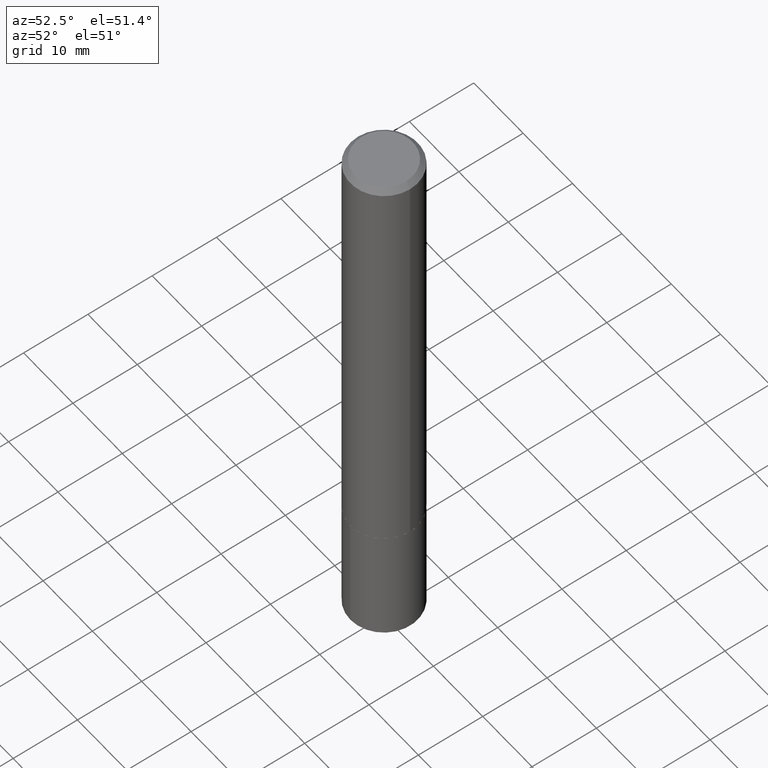
[diagram: clean part render]
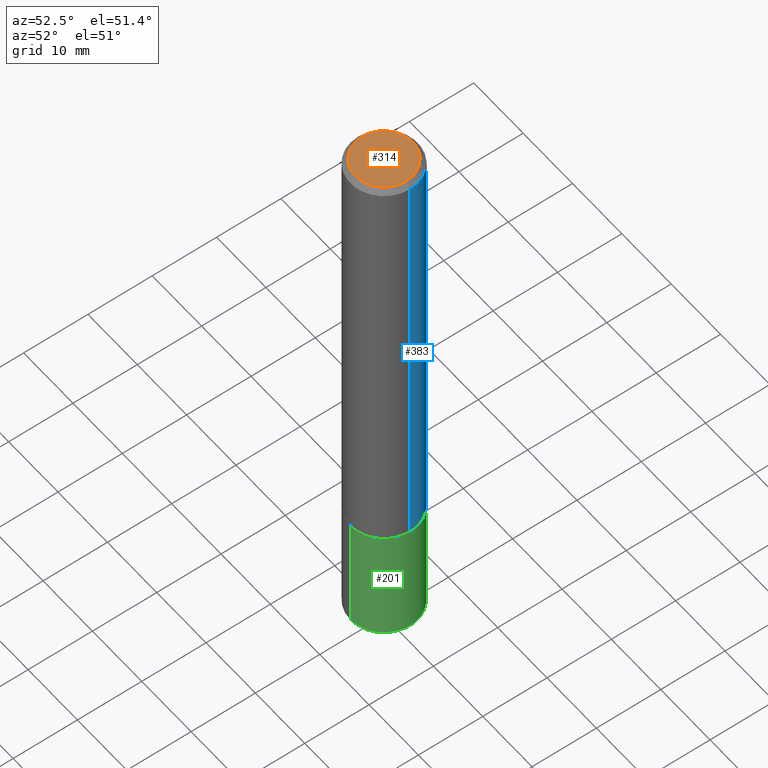
[diagram: same view with three faces highlighted in distinct colors, each labeled with its STEP entity id]
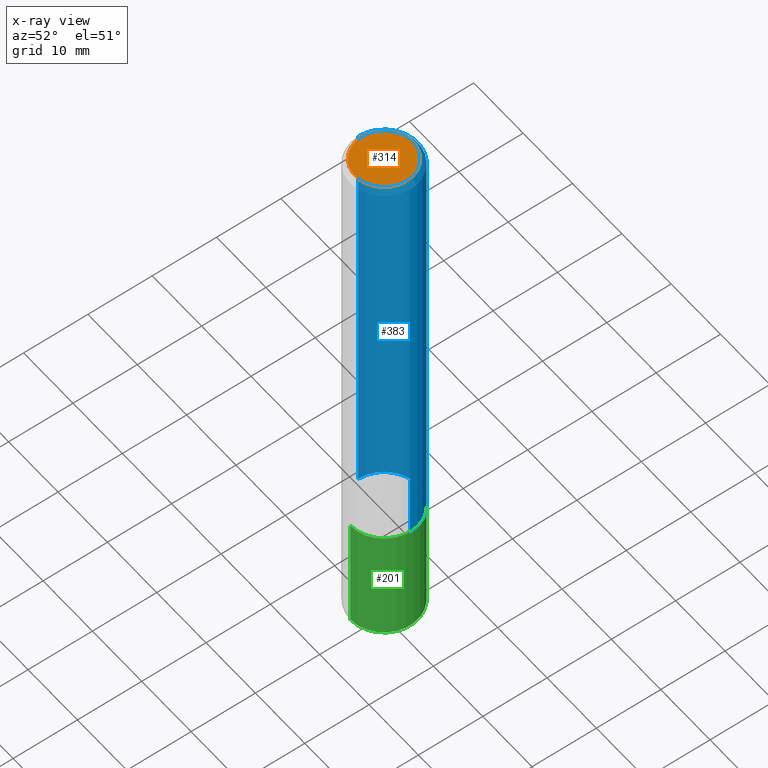
[diagram: x-ray of the same camera — body ghosted, the three highlighted faces saturated]
A machine part, auxiliary view with three faces highlighted in distinct colors.
The next image is the same camera in x-ray (body ghosted, the three faces saturated) — at least one of them is partly hidden behind the body in this view.
Their STEP definitions:

[orange] entity #314 — the highlighted planar face has unit normal (0, -0, -1).
#30 = ORIENTED_EDGE ( 'NONE', *, *, #256, .T. ) ;
#41 = VERTEX_POINT ( 'NONE', #73 ) ;
#73 = CARTESIAN_POINT ( 'NONE',  ( 0.1754499999999999948, -1.365424050843619950E-15, 1.085037064045460746E-17 ) ) ;
#94 = CIRCLE ( 'NONE', #115, 0.1754499999999999948 ) ;
#96 = EDGE_LOOP ( 'NONE', ( #301, #30 ) ) ;
#110 = CARTESIAN_POINT ( 'NONE',  ( -2.653424293675663351E-46, 3.788386661064719012E-32, 1.085037064044555097E-17 ) ) ;
#112 = DIRECTION ( 'NONE',  ( -2.445468806185136597E-29, 3.491481338843145583E-15, 1.000000000000000000 ) ) ;
#114 = DIRECTION ( 'NONE',  ( -1.000000000000000000, 6.982962677686265922E-15, -4.876176775795935793E-29 ) ) ;
#115 = AXIS2_PLACEMENT_3D ( 'NONE', #231, #112, #230 ) ;
#166 = CARTESIAN_POINT ( 'NONE',  ( -0.1754499999999999948, 1.279715197719478945E-15, 1.085037064043679184E-17 ) ) ;
#181 = VERTEX_POINT ( 'NONE', #166 ) ;
#183 = AXIS2_PLACEMENT_3D ( 'NONE', #389, #386, #114 ) ;
#204 = PLANE ( 'NONE',  #183 ) ;
#216 = EDGE_CURVE ( 'NONE', #181, #41, #305, .T. ) ;
#228 = DIRECTION ( 'NONE',  ( -2.445468806185136597E-29, 3.491481338843145583E-15, 1.000000000000000000 ) ) ;
#230 = DIRECTION ( 'NONE',  ( 1.000000000000000000, -6.982962677686267499E-15, 4.875944331572354800E-29 ) ) ;
#231 = CARTESIAN_POINT ( 'NONE',  ( -2.653424293675663351E-46, 3.788386661064719012E-32, 1.085037064044555097E-17 ) ) ;
#233 = AXIS2_PLACEMENT_3D ( 'NONE', #110, #228, #321 ) ;
#234 = FACE_OUTER_BOUND ( 'NONE', #96, .T. ) ;
#256 = EDGE_CURVE ( 'NONE', #41, #181, #94, .T. ) ;
#301 = ORIENTED_EDGE ( 'NONE', *, *, #216, .T. ) ;
#305 = CIRCLE ( 'NONE', #233, 0.1754499999999999948 ) ;
#314 = ADVANCED_FACE ( 'NONE', ( #234 ), #204, .F. ) ;
#321 = DIRECTION ( 'NONE',  ( 1.000000000000000000, -6.982962677686267499E-15, 4.875944331572354800E-29 ) ) ;
#386 = DIRECTION ( 'NONE',  ( 2.438088387897960049E-29, -3.491481338843145188E-15, -1.000000000000000000 ) ) ;
#389 = CARTESIAN_POINT ( 'NONE',  ( -1.326712146837831676E-46, 1.894193330532359506E-32, 5.425185320222775483E-18 ) ) ;

[blue] entity #383 — the highlighted cylindrical surface (partial cylindrical patch) has radius 5.2502 mm, axis along (-0, 0, 1).
#5 = VERTEX_POINT ( 'NONE', #213 ) ;
#22 = EDGE_CURVE ( 'NONE', #235, #34, #89, .T. ) ;
#31 = EDGE_CURVE ( 'NONE', #235, #5, #341, .T. ) ;
#34 = VERTEX_POINT ( 'NONE', #156 ) ;
#36 = DIRECTION ( 'NONE',  ( 1.000000000000000000, -6.982962677686269077E-15, 0.000000000000000000 ) ) ;
#47 = AXIS2_PLACEMENT_3D ( 'NONE', #185, #307, #36 ) ;
#56 = CIRCLE ( 'NONE', #281, 0.2067000000000000226 ) ;
#88 = CARTESIAN_POINT ( 'NONE',  ( 0.000000000000000000, 0.000000000000000000, 0.000000000000000000 ) ) ;
#89 = CIRCLE ( 'NONE', #47, 0.2067000000000003279 ) ;
#113 = LINE ( 'NONE', #168, #263 ) ;
#129 = AXIS2_PLACEMENT_3D ( 'NONE', #88, #174, #202 ) ;
#130 = ORIENTED_EDGE ( 'NONE', *, *, #373, .T. ) ;
#143 = CARTESIAN_POINT ( 'NONE',  ( 0.2067000000000003279, -1.085745951940052607E-14, -2.696299999999999475 ) ) ;
#156 = CARTESIAN_POINT ( 'NONE',  ( -0.2067000000000003279, -7.945389299106642284E-15, -2.696299999999999475 ) ) ;
#167 = DIRECTION ( 'NONE',  ( -2.445468806185136597E-29, 3.491481338843145583E-15, 1.000000000000000000 ) ) ;
#168 = CARTESIAN_POINT ( 'NONE',  ( -0.2067000000000001336, 1.468691834816128034E-15, -1.016743883155689846E-29 ) ) ;
#174 = DIRECTION ( 'NONE',  ( -2.445468806185136597E-29, 3.491481338843145583E-15, 1.000000000000000000 ) ) ;
#185 = CARTESIAN_POINT ( 'NONE',  ( 6.593717542116981856E-29, -9.414081133922771698E-15, -2.696299999999999475 ) ) ;
#188 = EDGE_CURVE ( 'NONE', #5, #189, #56, .T. ) ;
#189 = VERTEX_POINT ( 'NONE', #345 ) ;
#202 = DIRECTION ( 'NONE',  ( 1.000000000000000000, -6.982962677686266711E-15, 4.876176775795936914E-29 ) ) ;
#213 = CARTESIAN_POINT ( 'NONE',  ( 0.2067000000000000226, -1.552487177316600316E-15, -0.03125000000000022898 ) ) ;
#215 = ORIENTED_EDGE ( 'NONE', *, *, #31, .F. ) ;
#235 = VERTEX_POINT ( 'NONE', #143 ) ;
#246 = CARTESIAN_POINT ( 'NONE',  ( 0.2067000000000001336, -1.443378385477752202E-15, 1.007905739557020761E-29 ) ) ;
#252 = CARTESIAN_POINT ( 'NONE',  ( 7.642090019328607041E-31, -1.091087918388490883E-16, -0.03125000000000022898 ) ) ;
#258 = DIRECTION ( 'NONE',  ( -2.445468806185136877E-29, 3.491481338843145188E-15, 1.000000000000000000 ) ) ;
#263 = VECTOR ( 'NONE', #258, 39.37007874015748143 ) ;
#264 = ORIENTED_EDGE ( 'NONE', *, *, #22, .T. ) ;
#267 = ORIENTED_EDGE ( 'NONE', *, *, #188, .F. ) ;
#271 = EDGE_LOOP ( 'NONE', ( #264, #130, #267, #215 ) ) ;
#278 = DIRECTION ( 'NONE',  ( -2.445468806185136877E-29, 3.491481338843145188E-15, 1.000000000000000000 ) ) ;
#281 = AXIS2_PLACEMENT_3D ( 'NONE', #252, #167, #377 ) ;
#294 = VECTOR ( 'NONE', #278, 39.37007874015748143 ) ;
#307 = DIRECTION ( 'NONE',  ( -2.445468806185136597E-29, 3.491481338843145583E-15, 1.000000000000000000 ) ) ;
#341 = LINE ( 'NONE', #246, #294 ) ;
#345 = CARTESIAN_POINT ( 'NONE',  ( -0.2067000000000000226, -3.292903128064680985E-15, -0.03125000000000022898 ) ) ;
#354 = FACE_OUTER_BOUND ( 'NONE', #271, .T. ) ;
#373 = EDGE_CURVE ( 'NONE', #34, #189, #113, .T. ) ;
#377 = DIRECTION ( 'NONE',  ( 1.000000000000000000, -6.982962677686265133E-15, 0.000000000000000000 ) ) ;
#382 = CYLINDRICAL_SURFACE ( 'NONE', #129, 0.2067000000000001336 ) ;
#383 = ADVANCED_FACE ( 'NONE', ( #354 ), #382, .T. ) ;

[green] entity #201 — the highlighted cylindrical surface (partial cylindrical patch) has radius 5.2502 mm, axis along (-0, 0, 1).
#21 = EDGE_LOOP ( 'NONE', ( #67, #27, #238, #195 ) ) ;
#26 = LINE ( 'NONE', #55, #351 ) ;
#27 = ORIENTED_EDGE ( 'NONE', *, *, #84, .T. ) ;
#44 = CARTESIAN_POINT ( 'NONE',  ( 1.468691834816192917E-15, 0.2066999999999905857, -2.696800000000000086 ) ) ;
#48 = AXIS2_PLACEMENT_3D ( 'NONE', #200, #289, #93 ) ;
#55 = CARTESIAN_POINT ( 'NONE',  ( -1.443378385477685346E-15, -0.2067000000000094317, -2.696799999999998754 ) ) ;
#67 = ORIENTED_EDGE ( 'NONE', *, *, #269, .T. ) ;
#80 = DIRECTION ( 'NONE',  ( -6.982962677686265133E-15, -1.000000000000000000, 2.643297526525653668E-15 ) ) ;
#84 = EDGE_CURVE ( 'NONE', #319, #153, #220, .T. ) ;
#85 = EDGE_CURVE ( 'NONE', #363, #153, #355, .T. ) ;
#92 = CARTESIAN_POINT ( 'NONE',  ( -1.443378385477685346E-15, -0.2067000000000094317, -2.696799999999998754 ) ) ;
#93 = DIRECTION ( 'NONE',  ( -6.982962677686265133E-15, -1.000000000000000000, 2.643297526525653668E-15 ) ) ;
#108 = FACE_OUTER_BOUND ( 'NONE', #21, .T. ) ;
#134 = CARTESIAN_POINT ( 'NONE',  ( 1.468691834816211061E-15, 0.2066999999999905857, -2.696800000000000086 ) ) ;
#144 = CIRCLE ( 'NONE', #48, 0.2067000000000000226 ) ;
#153 = VERTEX_POINT ( 'NONE', #134 ) ;
#158 = VECTOR ( 'NONE', #162, 39.37007874015748143 ) ;
#162 = DIRECTION ( 'NONE',  ( -2.440808573985819883E-29, 3.498155056596511424E-15, 1.000000000000000000 ) ) ;
#191 = DIRECTION ( 'NONE',  ( -2.440808573985819883E-29, 3.498155056596511424E-15, 1.000000000000000000 ) ) ;
#195 = ORIENTED_EDGE ( 'NONE', *, *, #330, .F. ) ;
#197 = DIRECTION ( 'NONE',  ( -6.982962677686265133E-15, -1.000000000000000000, 2.643297526525653668E-15 ) ) ;
#200 = CARTESIAN_POINT ( 'NONE',  ( 8.381288385710751773E-29, -1.197601235476794621E-14, -3.428667352577176697 ) ) ;
#201 = ADVANCED_FACE ( 'NONE', ( #108 ), #380, .T. ) ;
#220 = LINE ( 'NONE', #44, #158 ) ;
#238 = ORIENTED_EDGE ( 'NONE', *, *, #85, .F. ) ;
#248 = VERTEX_POINT ( 'NONE', #385 ) ;
#251 = AXIS2_PLACEMENT_3D ( 'NONE', #312, #191, #197 ) ;
#269 = EDGE_CURVE ( 'NONE', #248, #319, #144, .T. ) ;
#286 = DIRECTION ( 'NONE',  ( -2.440808573985819883E-29, 3.498155056596511424E-15, 1.000000000000000000 ) ) ;
#289 = DIRECTION ( 'NONE',  ( -2.440808573985819883E-29, 3.498155056596511424E-15, 1.000000000000000000 ) ) ;
#312 = CARTESIAN_POINT ( 'NONE',  ( 6.594940276520074658E-29, -9.415826874592193991E-15, -2.696799999999999642 ) ) ;
#319 = VERTEX_POINT ( 'NONE', #323 ) ;
#323 = CARTESIAN_POINT ( 'NONE',  ( 1.468691834816210075E-15, 0.2066999999999879489, -3.428667352577177141 ) ) ;
#328 = DIRECTION ( 'NONE',  ( -2.440808573985819883E-29, 3.498155056596511424E-15, 1.000000000000000000 ) ) ;
#330 = EDGE_CURVE ( 'NONE', #248, #363, #26, .T. ) ;
#349 = CARTESIAN_POINT ( 'NONE',  ( 6.594940276520074658E-29, -9.415826874592193991E-15, -2.696799999999999642 ) ) ;
#351 = VECTOR ( 'NONE', #328, 39.37007874015748143 ) ;
#355 = CIRCLE ( 'NONE', #251, 0.2067000000000000226 ) ;
#363 = VERTEX_POINT ( 'NONE', #92 ) ;
#376 = AXIS2_PLACEMENT_3D ( 'NONE', #349, #286, #80 ) ;
#380 = CYLINDRICAL_SURFACE ( 'NONE', #376, 0.2067000000000000226 ) ;
#385 = CARTESIAN_POINT ( 'NONE',  ( -1.443378385477667202E-15, -0.2067000000000119297, -3.428667352577175809 ) ) ;